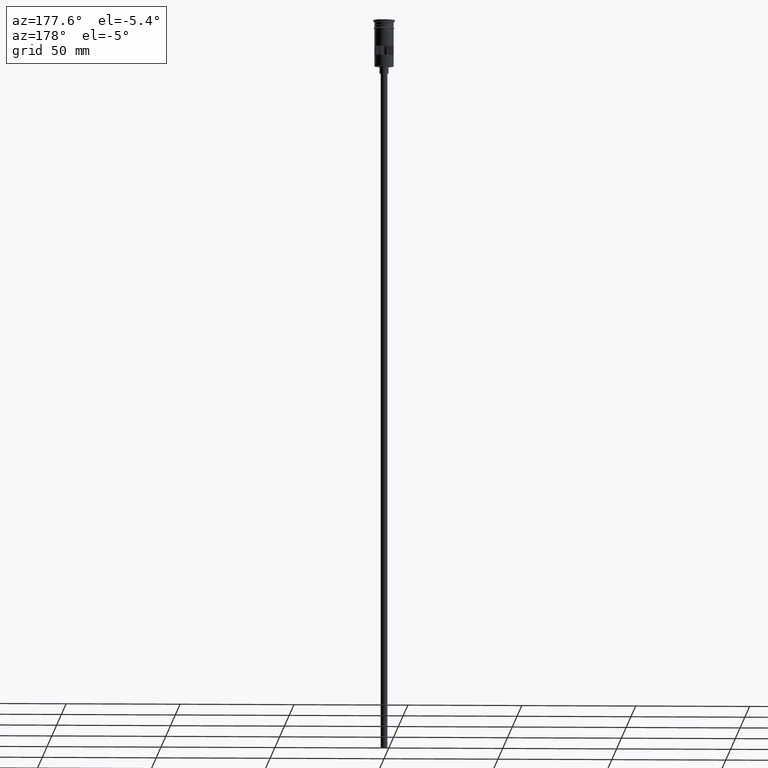
[diagram: clean part render]
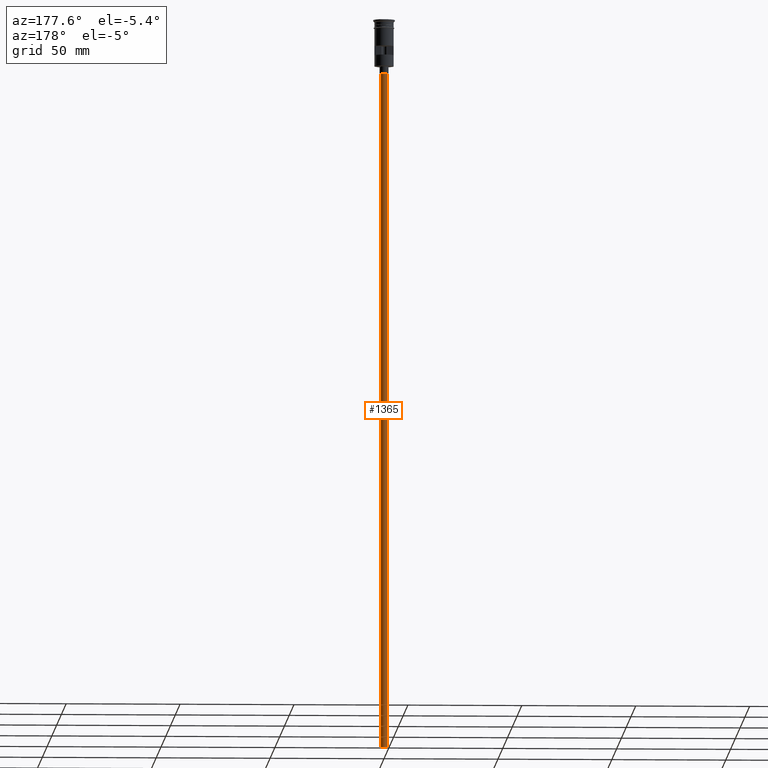
[diagram: same view with one face highlighted and labeled with its STEP entity id]
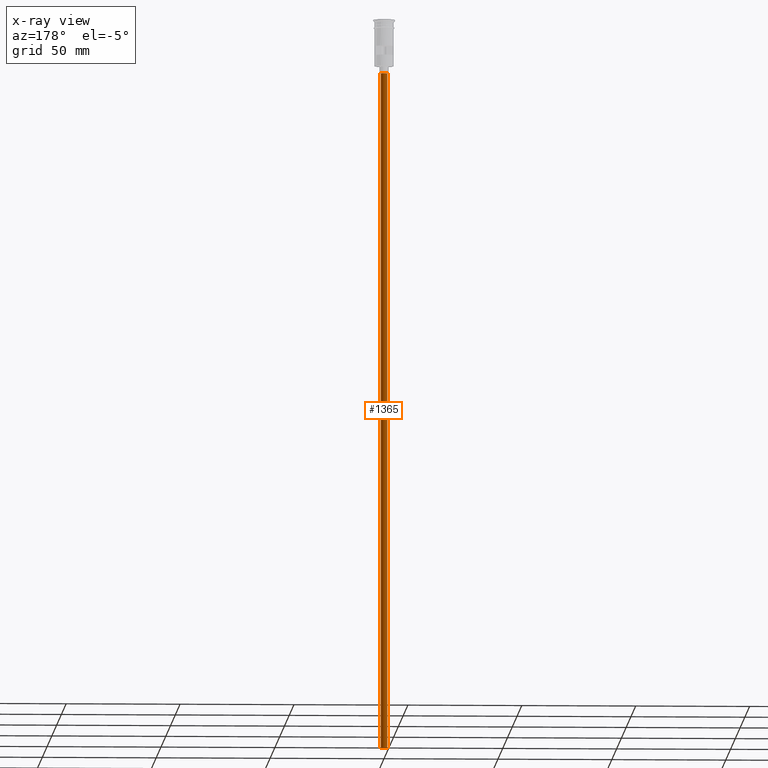
[diagram: x-ray of the same camera — body ghosted, the highlighted face saturated]
A machine part, auxiliary view. The second image highlights one B-rep face of the part: STEP entity #1365.
The next image is the same camera in x-ray: the body ghosted, the highlighted face saturated — about 0% of this face is hidden behind the body in this view.
In plain terms, the highlighted cylindrical surface (edge-blend (fillet) strip) has radius 1.5 mm, axis along (-0, -0, 1).
Its self-contained STEP definition (entity closure, byte-faithful):
#61 = VECTOR ( 'NONE', #902, 1000.000000000000000 ) ;
#72 = DIRECTION ( 'NONE',  ( 0.000000000000000000, 0.000000000000000000, -1.000000000000000000 ) ) ;
#75 = CARTESIAN_POINT ( 'NONE',  ( -1.500000000000000222, 1.836970198721030181E-16, -320.5000000000000000 ) ) ;
#145 = AXIS2_PLACEMENT_3D ( 'NONE', #917, #72, #543 ) ;
#159 = CARTESIAN_POINT ( 'NONE',  ( -1.500000000000000222, 1.836970198721030181E-16, -320.5000000000000000 ) ) ;
#165 = CARTESIAN_POINT ( 'NONE',  ( 0.000000000000000000, 0.000000000000000000, -23.49999999999999645 ) ) ;
#200 = EDGE_CURVE ( 'NONE', #850, #954, #623, .T. ) ;
#317 = AXIS2_PLACEMENT_3D ( 'NONE', #1159, #921, #441 ) ;
#322 = VERTEX_POINT ( 'NONE', #1268 ) ;
#323 = ORIENTED_EDGE ( 'NONE', *, *, #410, .T. ) ;
#410 = EDGE_CURVE ( 'NONE', #1160, #322, #650, .T. ) ;
#424 = DIRECTION ( 'NONE',  ( 0.000000000000000000, 0.000000000000000000, -1.000000000000000000 ) ) ;
#441 = DIRECTION ( 'NONE',  ( 1.000000000000000000, 0.000000000000000000, 0.000000000000000000 ) ) ;
#472 = DIRECTION ( 'NONE',  ( -0.000000000000000000, -0.000000000000000000, 1.000000000000000000 ) ) ;
#543 = DIRECTION ( 'NONE',  ( -1.000000000000000000, 0.000000000000000000, 0.000000000000000000 ) ) ;
#597 = CIRCLE ( 'NONE', #1329, 1.500000000000000222 ) ;
#598 = VECTOR ( 'NONE', #472, 1000.000000000000000 ) ;
#617 = CARTESIAN_POINT ( 'NONE',  ( 1.500000000000000222, 0.000000000000000000, -320.5000000000000000 ) ) ;
#623 = LINE ( 'NONE', #617, #598 ) ;
#650 = LINE ( 'NONE', #75, #61 ) ;
#833 = CIRCLE ( 'NONE', #145, 1.500000000000000222 ) ;
#850 = VERTEX_POINT ( 'NONE', #1146 ) ;
#873 = EDGE_CURVE ( 'NONE', #1160, #850, #833, .T. ) ;
#902 = DIRECTION ( 'NONE',  ( -0.000000000000000000, -0.000000000000000000, 1.000000000000000000 ) ) ;
#917 = CARTESIAN_POINT ( 'NONE',  ( 0.000000000000000000, 0.000000000000000000, -320.5000000000000000 ) ) ;
#921 = DIRECTION ( 'NONE',  ( -0.000000000000000000, -0.000000000000000000, 1.000000000000000000 ) ) ;
#927 = CYLINDRICAL_SURFACE ( 'NONE', #317, 1.500000000000000222 ) ;
#954 = VERTEX_POINT ( 'NONE', #1303 ) ;
#1052 = ORIENTED_EDGE ( 'NONE', *, *, #200, .F. ) ;
#1074 = FACE_OUTER_BOUND ( 'NONE', #1439, .T. ) ;
#1146 = CARTESIAN_POINT ( 'NONE',  ( 1.500000000000000222, 0.000000000000000000, -320.5000000000000000 ) ) ;
#1159 = CARTESIAN_POINT ( 'NONE',  ( 0.000000000000000000, 0.000000000000000000, -320.5000000000000000 ) ) ;
#1160 = VERTEX_POINT ( 'NONE', #159 ) ;
#1211 = ORIENTED_EDGE ( 'NONE', *, *, #873, .F. ) ;
#1268 = CARTESIAN_POINT ( 'NONE',  ( -1.500000000000000222, 1.836970198721030181E-16, -23.49999999999999645 ) ) ;
#1301 = EDGE_CURVE ( 'NONE', #322, #954, #597, .T. ) ;
#1303 = CARTESIAN_POINT ( 'NONE',  ( 1.500000000000000222, 0.000000000000000000, -23.49999999999999645 ) ) ;
#1329 = AXIS2_PLACEMENT_3D ( 'NONE', #165, #424, #1428 ) ;
#1365 = ADVANCED_FACE ( 'NONE', ( #1074 ), #927, .T. ) ;
#1428 = DIRECTION ( 'NONE',  ( -1.000000000000000000, 0.000000000000000000, 0.000000000000000000 ) ) ;
#1439 = EDGE_LOOP ( 'NONE', ( #1211, #323, #1586, #1052 ) ) ;
#1586 = ORIENTED_EDGE ( 'NONE', *, *, #1301, .T. ) ;